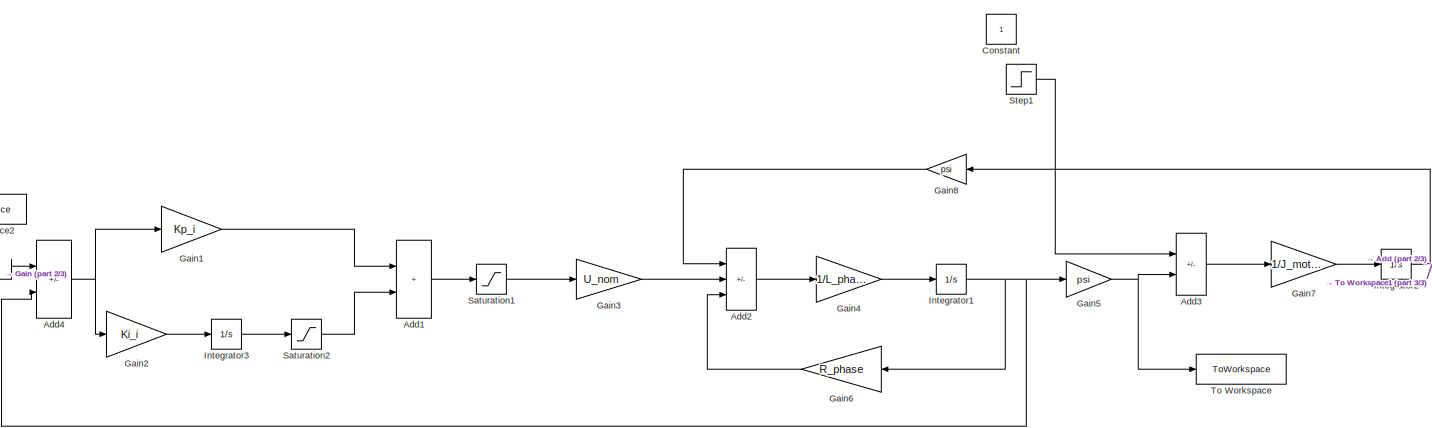
[diagram: root canvas - part 1/3, most of the canvas]
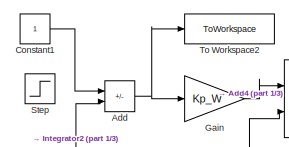
[diagram: root canvas - part 2/3, middle left region]
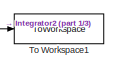
[diagram: root canvas - part 3/3, middle right region]
MODEL slx_ee5a95e35b31
KIND model
CONFIG AbsTol = auto
CONFIG EnableMultiTasking = off
CONFIG FixedStep = 0.00001
CONFIG MaxStep = auto
CONFIG MinStep = auto
CONFIG RelTol = 1e-3
CONFIG SampleTimeConstraint = Unconstrained
CONFIG SolverName = FixedStepAuto
CONFIG StartTime = 0.0
CONFIG StopTime = 2
BLOCK [Sum] Add
  IconShape = rectangular
  Inputs = +-
  Ports = [2, 1]
BLOCK [Sum] Add1
  IconShape = rectangular
  Ports = [2, 1]
BLOCK [Sum] Add2
  IconShape = rectangular
  Inputs = -+-
  Ports = [3, 1]
BLOCK [Sum] Add3
  IconShape = rectangular
  Inputs = -+
  Ports = [2, 1]
BLOCK [Sum] Add4
  IconShape = rectangular
  Inputs = +-
  Ports = [2, 1]
BLOCK [Constant] Constant
BLOCK [Constant] Constant1
BLOCK [Gain] Gain
  Gain = Kp_W
BLOCK [Gain] Gain1
  Gain = Kp_i
BLOCK [Gain] Gain2
  Gain = Ki_i
BLOCK [Gain] Gain3
  Gain = U_nom
BLOCK [Gain] Gain4
  Gain = 1/L_phase
BLOCK [Gain] Gain5
  Gain = psi
BLOCK [Gain] Gain6
  Gain = R_phase
  NameLocation = top
BLOCK [Gain] Gain7
  Gain = 1/J_motor
BLOCK [Gain] Gain8
  Gain = psi
  NameLocation = top
BLOCK [Integrator] Integrator1
  Ports = [1, 1]
BLOCK [Integrator] Integrator2
  Ports = [1, 1]
BLOCK [Integrator] Integrator3
  Ports = [1, 1]
BLOCK [Saturate] Saturation1
  LowerLimit = -1
  UpperLimit = 1
BLOCK [Saturate] Saturation2
  LowerLimit = -1
  UpperLimit = 1
BLOCK [Step] Step
  SampleTime = 0
BLOCK [Step] Step1
  SampleTime = 0
BLOCK [ToWorkspace] To Workspace
  FixptAsFi = on
  MaxDataPoints = inf
  Ports = [1]
  SampleTime = 0.001
  SaveFormat = Timeseries
  VariableName = torque
BLOCK [ToWorkspace] To Workspace1
  FixptAsFi = on
  MaxDataPoints = inf
  Ports = [1]
  SampleTime = 0.001
  SaveFormat = Timeseries
  VariableName = wmotor
BLOCK [ToWorkspace] To Workspace2
  FixptAsFi = on
  MaxDataPoints = inf
  Ports = [1]
  SampleTime = 0.001
  SaveFormat = Timeseries
  VariableName = error
LINE Add1:1 -> Saturation1:1
LINE Add2:1 -> Gain4:1
LINE Add3:1 -> Gain7:1
NET Add4:1 -> Gain1:1, Gain2:1
NET Add:1 -> Gain:1, To Workspace2:1
LINE Constant1:1 -> Add:1
LINE Gain1:1 -> Add1:1
LINE Gain2:1 -> Integrator3:1
LINE Gain3:1 -> Add2:2
LINE Gain4:1 -> Integrator1:1
NET Gain5:1 -> Add3:2, To Workspace:1
LINE Gain6:1 -> Add2:3
LINE Gain7:1 -> Integrator2:1
LINE Gain8:1 -> Add2:1
LINE Gain:1 -> Add4:1
NET Integrator1:1 -> Add4:2, Gain5:1, Gain6:1
NET Integrator2:1 -> Add:2, Gain8:1, To Workspace1:1
LINE Integrator3:1 -> Saturation2:1
LINE Saturation1:1 -> Gain3:1
LINE Saturation2:1 -> Add1:2
LINE Step1:1 -> Add3:1
note: NET lines group one-source signal fan-out (src -> all destinations, sorted); 1:1 wires keep LINE
